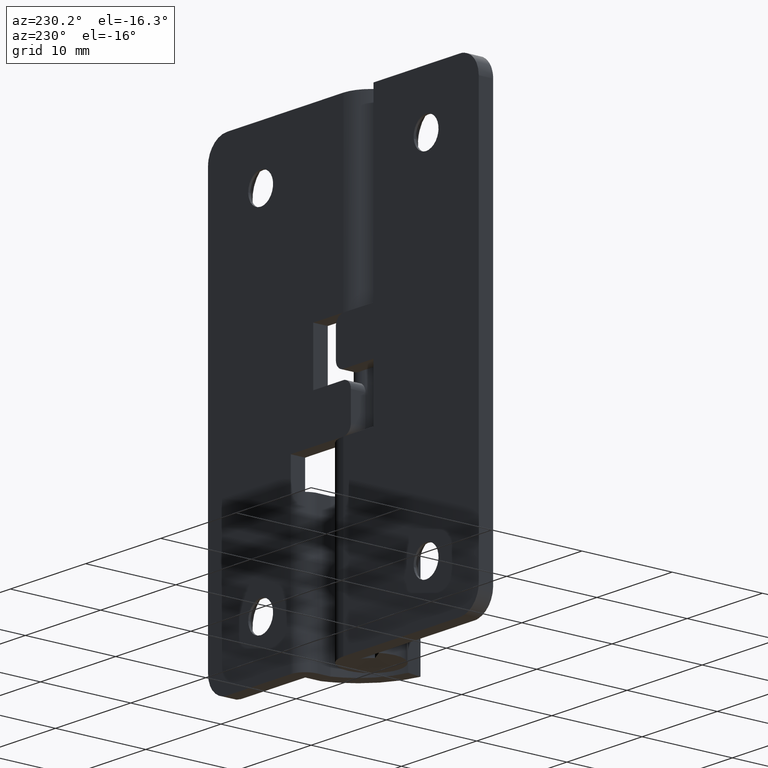
[diagram: clean part render]
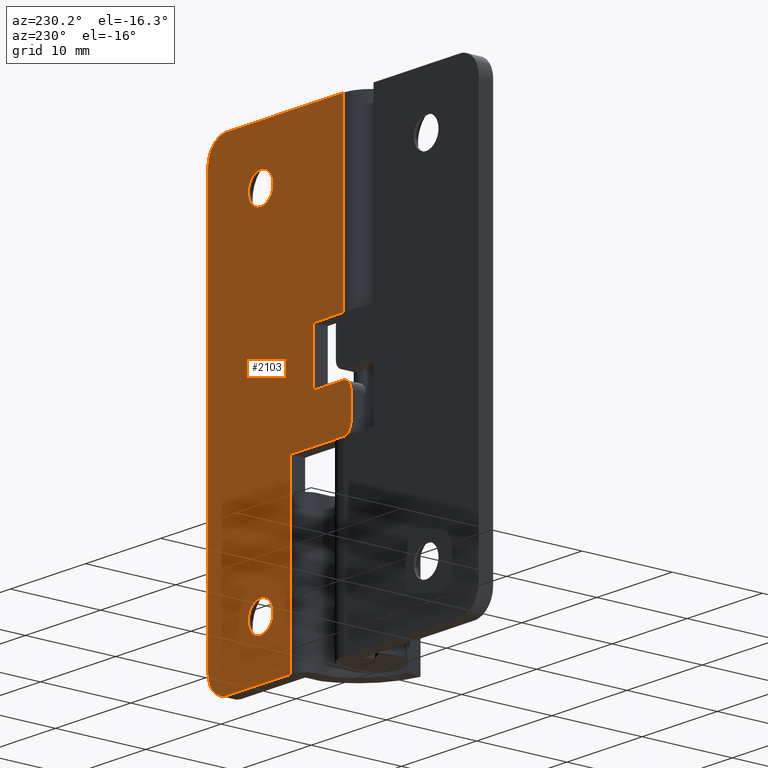
[diagram: same view with one face highlighted and labeled with its STEP entity id]
A machine part, auxiliary view. The second image highlights one B-rep face of the part: STEP entity #2103.
In plain terms, the highlighted face is a freeform B-spline surface patch.
Its self-contained STEP definition (entity closure, byte-faithful):
#672=CARTESIAN_POINT('',(9.362752809069800,3.099990999999999,44.204812196548858));
#673=VERTEX_POINT('',#672);
#679=CARTESIAN_POINT('',(11.0,3.099991000000000,45.650008000000000));
#680=VERTEX_POINT('',#679);
#681=CARTESIAN_POINT('',(11.0,3.099991000000000,45.650008000000000));
#682=CARTESIAN_POINT('',(9.543540248330302,3.099991000000000,45.650008000000007));
#683=CARTESIAN_POINT('',(9.362752809069800,3.099990999999999,44.204812196548865));
#691=(BOUNDED_CURVE()B_SPLINE_CURVE(2,(#681,#682,#683),.UNSPECIFIED.,.F.,.U.)B_SPLINE_CURVE_WITH_KNOTS((3,3),(0.500000000000000,0.728526071010113),.UNSPECIFIED.)CURVE()GEOMETRIC_REPRESENTATION_ITEM()RATIONAL_B_SPLINE_CURVE((1.0,0.732265053916225,0.954005430237487))REPRESENTATION_ITEM(''));
#692=EDGE_CURVE('',#680,#673,#691,.T.);
#694=CARTESIAN_POINT('',(12.649945172749099,3.099991000000000,43.985601146366783));
#695=VERTEX_POINT('',#694);
#696=CARTESIAN_POINT('',(12.649945172749097,3.099991000000000,43.985601146366783));
#697=CARTESIAN_POINT('',(12.650008000000003,3.099991000000000,43.992800435990404));
#698=CARTESIAN_POINT('',(12.650008000000000,3.099991000000000,44.0));
#699=CARTESIAN_POINT('',(12.650007999999998,3.099990999999999,45.650008000000007));
#700=CARTESIAN_POINT('',(11.0,3.099991000000000,45.650008000000000));
#708=(BOUNDED_CURVE()B_SPLINE_CURVE(2,(#696,#697,#698,#699,#700),.UNSPECIFIED.,.F.,.U.)B_SPLINE_CURVE_WITH_KNOTS((3,2,3),(0.248460105611930,0.250000000000000,0.500000000000000),.UNSPECIFIED.)CURVE()GEOMETRIC_REPRESENTATION_ITEM()RATIONAL_B_SPLINE_CURVE((0.996414027977557,0.998195901504181,1.0,0.707106781186548,1.0))REPRESENTATION_ITEM(''));
#709=EDGE_CURVE('',#695,#680,#708,.T.);
#745=CARTESIAN_POINT('',(11.0,3.099991000000000,42.349991999999993));
#746=VERTEX_POINT('',#745);
#747=CARTESIAN_POINT('',(11.0,3.099991000000000,42.349991999999993));
#748=CARTESIAN_POINT('',(12.635671427478446,3.099990999999999,42.349991999999993));
#749=CARTESIAN_POINT('',(12.649945172749094,3.099991000000000,43.985601146366790));
#757=(BOUNDED_CURVE()B_SPLINE_CURVE(2,(#747,#748,#749),.UNSPECIFIED.,.F.,.U.)B_SPLINE_CURVE_WITH_KNOTS((3,3),(0.0,0.248460105611930),.UNSPECIFIED.)CURVE()GEOMETRIC_REPRESENTATION_ITEM()RATIONAL_B_SPLINE_CURVE((1.0,0.708910879682366,0.996414027977556))REPRESENTATION_ITEM(''));
#758=EDGE_CURVE('',#746,#695,#757,.T.);
#760=CARTESIAN_POINT('',(9.362752809069800,3.099991000000000,44.204812196548858));
#761=CARTESIAN_POINT('',(9.349992000000000,3.099991000000001,44.102803628963905));
#762=CARTESIAN_POINT('',(9.349992000000000,3.099991000000000,44.0));
#763=CARTESIAN_POINT('',(9.349992000000000,3.099990999999999,42.349992000000000));
#764=CARTESIAN_POINT('',(11.0,3.099991000000000,42.349991999999993));
#772=(BOUNDED_CURVE()B_SPLINE_CURVE(2,(#760,#761,#762,#763,#764),.UNSPECIFIED.,.F.,.U.)B_SPLINE_CURVE_WITH_KNOTS((3,2,3),(0.728526071010114,0.750000000000000,1.0),.UNSPECIFIED.)CURVE()GEOMETRIC_REPRESENTATION_ITEM()RATIONAL_B_SPLINE_CURVE((0.954005430237489,0.974841727270323,1.0,0.707106781186548,1.0))REPRESENTATION_ITEM(''));
#773=EDGE_CURVE('',#673,#746,#772,.T.);
#1016=CARTESIAN_POINT('',(9.362752809069800,3.099990999999999,6.204812196548861));
#1017=VERTEX_POINT('',#1016);
#1023=CARTESIAN_POINT('',(11.0,3.099991000000000,7.650008000000000));
#1024=VERTEX_POINT('',#1023);
#1025=CARTESIAN_POINT('',(11.0,3.099991000000000,7.650008000000000));
#1026=CARTESIAN_POINT('',(9.543540248330302,3.099991000000000,7.650008000000000));
#1027=CARTESIAN_POINT('',(9.362752809069800,3.099990999999999,6.204812196548861));
#1035=(BOUNDED_CURVE()B_SPLINE_CURVE(2,(#1025,#1026,#1027),.UNSPECIFIED.,.F.,.U.)B_SPLINE_CURVE_WITH_KNOTS((3,3),(0.500000000000000,0.728526071010113),.UNSPECIFIED.)CURVE()GEOMETRIC_REPRESENTATION_ITEM()RATIONAL_B_SPLINE_CURVE((1.0,0.732265053916225,0.954005430237487))REPRESENTATION_ITEM(''));
#1036=EDGE_CURVE('',#1024,#1017,#1035,.T.);
#1038=CARTESIAN_POINT('',(12.649945172749099,3.099991000000000,5.985601146366783));
#1039=VERTEX_POINT('',#1038);
#1040=CARTESIAN_POINT('',(12.649945172749097,3.099991000000000,5.985601146366783));
#1041=CARTESIAN_POINT('',(12.650008000000003,3.099991000000000,5.992800435990405));
#1042=CARTESIAN_POINT('',(12.650008000000000,3.099991000000000,6.0));
#1043=CARTESIAN_POINT('',(12.650007999999998,3.099990999999999,7.650007999999999));
#1044=CARTESIAN_POINT('',(11.0,3.099991000000000,7.650008000000000));
#1052=(BOUNDED_CURVE()B_SPLINE_CURVE(2,(#1040,#1041,#1042,#1043,#1044),.UNSPECIFIED.,.F.,.U.)B_SPLINE_CURVE_WITH_KNOTS((3,2,3),(0.248460105611930,0.250000000000000,0.500000000000000),.UNSPECIFIED.)CURVE()GEOMETRIC_REPRESENTATION_ITEM()RATIONAL_B_SPLINE_CURVE((0.996414027977557,0.998195901504181,1.0,0.707106781186548,1.0))REPRESENTATION_ITEM(''));
#1053=EDGE_CURVE('',#1039,#1024,#1052,.T.);
#1089=CARTESIAN_POINT('',(11.0,3.099991000000000,4.349992000000000));
#1090=VERTEX_POINT('',#1089);
#1091=CARTESIAN_POINT('',(11.0,3.099991000000000,4.349992000000000));
#1092=CARTESIAN_POINT('',(12.635671427478449,3.099991000000000,4.349992000000002));
#1093=CARTESIAN_POINT('',(12.649945172749096,3.099991000000000,5.985601146366783));
#1101=(BOUNDED_CURVE()B_SPLINE_CURVE(2,(#1091,#1092,#1093),.UNSPECIFIED.,.F.,.U.)B_SPLINE_CURVE_WITH_KNOTS((3,3),(0.0,0.248460105611930),.UNSPECIFIED.)CURVE()GEOMETRIC_REPRESENTATION_ITEM()RATIONAL_B_SPLINE_CURVE((1.0,0.708910879682366,0.996414027977557))REPRESENTATION_ITEM(''));
#1102=EDGE_CURVE('',#1090,#1039,#1101,.T.);
#1104=CARTESIAN_POINT('',(9.362752809069800,3.099990999999999,6.204812196548861));
#1105=CARTESIAN_POINT('',(9.349991999999999,3.099991000000000,6.102803628963901));
#1106=CARTESIAN_POINT('',(9.349992000000000,3.099991000000000,6.0));
#1107=CARTESIAN_POINT('',(9.349992000000000,3.099990999999999,4.349992000000000));
#1108=CARTESIAN_POINT('',(11.0,3.099991000000000,4.349992000000000));
#1116=(BOUNDED_CURVE()B_SPLINE_CURVE(2,(#1104,#1105,#1106,#1107,#1108),.UNSPECIFIED.,.F.,.U.)B_SPLINE_CURVE_WITH_KNOTS((3,2,3),(0.728526071010114,0.750000000000000,1.0),.UNSPECIFIED.)CURVE()GEOMETRIC_REPRESENTATION_ITEM()RATIONAL_B_SPLINE_CURVE((0.954005430237488,0.974841727270323,1.0,0.707106781186548,1.0))REPRESENTATION_ITEM(''));
#1117=EDGE_CURVE('',#1017,#1090,#1116,.T.);
#1139=CARTESIAN_POINT('',(7.000000999999790,3.099991000000000,16.0));
#1140=VERTEX_POINT('',#1139);
#1156=CARTESIAN_POINT('',(7.000001999999890,3.099991000000000,0.0));
#1157=VERTEX_POINT('',#1156);
#1158=CARTESIAN_POINT('',(7.000001999999890,3.099991000000000,0.0));
#1159=CARTESIAN_POINT('',(7.000000999999790,3.099991000000000,16.0));
#1160=QUASI_UNIFORM_CURVE('',1,(#1158,#1159),.UNSPECIFIED.,.F.,.U.);
#1161=EDGE_CURVE('',#1157,#1140,#1160,.T.);
#1426=CARTESIAN_POINT('',(-1.0,3.099991000000000,20.500000000000000));
#1427=VERTEX_POINT('',#1426);
#1433=CARTESIAN_POINT('',(0.0,3.099991000000000,19.500000000000000));
#1434=VERTEX_POINT('',#1433);
#1435=CARTESIAN_POINT('',(0.0,3.099991000000000,19.500000000000000));
#1436=CARTESIAN_POINT('',(-1.0,3.099990999999999,19.500000000000004));
#1437=CARTESIAN_POINT('',(-1.0,3.099991000000000,20.500000000000000));
#1445=(BOUNDED_CURVE()B_SPLINE_CURVE(2,(#1435,#1436,#1437),.UNSPECIFIED.,.F.,.U.)CURVE()GEOMETRIC_REPRESENTATION_ITEM()QUASI_UNIFORM_CURVE()RATIONAL_B_SPLINE_CURVE((1.0,0.707106781186548,1.0))REPRESENTATION_ITEM(''));
#1446=EDGE_CURVE('',#1434,#1427,#1445,.T.);
#1487=CARTESIAN_POINT('',(0.0,3.099991000000000,24.500000000000000));
#1488=VERTEX_POINT('',#1487);
#1494=CARTESIAN_POINT('',(-1.0,3.099991000000000,23.500000000000000));
#1495=VERTEX_POINT('',#1494);
#1496=CARTESIAN_POINT('',(-1.0,3.099991000000000,23.500000000000000));
#1497=CARTESIAN_POINT('',(-1.0,3.099990999999999,24.500000000000004));
#1498=CARTESIAN_POINT('',(0.0,3.099991000000000,24.500000000000000));
#1506=(BOUNDED_CURVE()B_SPLINE_CURVE(2,(#1496,#1497,#1498),.UNSPECIFIED.,.F.,.U.)CURVE()GEOMETRIC_REPRESENTATION_ITEM()QUASI_UNIFORM_CURVE()RATIONAL_B_SPLINE_CURVE((1.0,0.707106781186548,1.0))REPRESENTATION_ITEM(''));
#1507=EDGE_CURVE('',#1495,#1488,#1506,.T.);
#1522=CARTESIAN_POINT('',(4.0,3.099991000000000,24.500000000000000));
#1523=VERTEX_POINT('',#1522);
#1524=CARTESIAN_POINT('',(0.0,3.099991000000000,24.500000000000000));
#1525=CARTESIAN_POINT('',(4.0,3.099991000000000,24.500000000000000));
#1526=QUASI_UNIFORM_CURVE('',1,(#1524,#1525),.UNSPECIFIED.,.F.,.U.);
#1527=EDGE_CURVE('',#1488,#1523,#1526,.T.);
#1556=CARTESIAN_POINT('',(-1.0,3.099991000000000,20.500000000000000));
#1557=CARTESIAN_POINT('',(-1.0,3.099991000000000,23.500000000000000));
#1558=QUASI_UNIFORM_CURVE('',1,(#1556,#1557),.UNSPECIFIED.,.F.,.U.);
#1559=EDGE_CURVE('',#1427,#1495,#1558,.T.);
#1570=CARTESIAN_POINT('',(6.999999999999901,3.099991000000000,19.500000000000000));
#1571=VERTEX_POINT('',#1570);
#1572=CARTESIAN_POINT('',(7.000000999999790,3.099991000000000,16.0));
#1573=CARTESIAN_POINT('',(6.999999999999901,3.099991000000000,19.500000000000000));
#1574=QUASI_UNIFORM_CURVE('',1,(#1572,#1573),.UNSPECIFIED.,.F.,.U.);
#1575=EDGE_CURVE('',#1140,#1571,#1574,.T.);
#1600=CARTESIAN_POINT('',(4.0,3.099991000000000,30.500000000000000));
#1601=VERTEX_POINT('',#1600);
#1642=CARTESIAN_POINT('',(0.007462934341625,3.099991000000000,30.500000000000000));
#1643=VERTEX_POINT('',#1642);
#1663=CARTESIAN_POINT('',(4.0,3.099991000000000,30.500000000000000));
#1664=CARTESIAN_POINT('',(0.007462934341625,3.099991000000000,30.500000000000000));
#1665=QUASI_UNIFORM_CURVE('',1,(#1663,#1664),.UNSPECIFIED.,.F.,.U.);
#1666=EDGE_CURVE('',#1601,#1643,#1665,.T.);
#1682=CARTESIAN_POINT('',(6.999999999999901,3.099991000000000,19.500000000000000));
#1683=CARTESIAN_POINT('',(0.0,3.099991000000000,19.500000000000000));
#1684=QUASI_UNIFORM_CURVE('',1,(#1682,#1683),.UNSPECIFIED.,.F.,.U.);
#1685=EDGE_CURVE('',#1571,#1434,#1684,.T.);
#1696=CARTESIAN_POINT('',(4.0,3.099991000000000,24.500000000000000));
#1697=CARTESIAN_POINT('',(4.0,3.099991000000000,30.500000000000000));
#1698=QUASI_UNIFORM_CURVE('',1,(#1696,#1697),.UNSPECIFIED.,.F.,.U.);
#1699=EDGE_CURVE('',#1523,#1601,#1698,.T.);
#1725=CARTESIAN_POINT('',(15.500000000000000,3.099991000000000,50.0));
#1726=VERTEX_POINT('',#1725);
#1727=CARTESIAN_POINT('',(18.0,3.099991000000000,47.500000000000000));
#1728=VERTEX_POINT('',#1727);
#1729=CARTESIAN_POINT('',(15.500000000000000,3.099991000000000,50.0));
#1730=CARTESIAN_POINT('',(18.000000000000007,3.099990999999999,50.0));
#1731=CARTESIAN_POINT('',(18.0,3.099991000000000,47.500000000000000));
#1739=(BOUNDED_CURVE()B_SPLINE_CURVE(2,(#1729,#1730,#1731),.UNSPECIFIED.,.F.,.U.)CURVE()GEOMETRIC_REPRESENTATION_ITEM()QUASI_UNIFORM_CURVE()RATIONAL_B_SPLINE_CURVE((1.0,0.707106781186548,1.0))REPRESENTATION_ITEM(''));
#1740=EDGE_CURVE('',#1726,#1728,#1739,.T.);
#1786=CARTESIAN_POINT('',(18.0,3.099991000000000,2.499999999999945));
#1787=VERTEX_POINT('',#1786);
#1788=CARTESIAN_POINT('',(15.500000000000000,3.099991000000000,0.0));
#1789=VERTEX_POINT('',#1788);
#1790=CARTESIAN_POINT('',(18.0,3.099991000000000,2.499999999999945));
#1791=CARTESIAN_POINT('',(18.000000000000007,3.099990999999999,0.0));
#1792=CARTESIAN_POINT('',(15.500000000000000,3.099991000000000,0.0));
#1800=(BOUNDED_CURVE()B_SPLINE_CURVE(2,(#1790,#1791,#1792),.UNSPECIFIED.,.F.,.U.)CURVE()GEOMETRIC_REPRESENTATION_ITEM()QUASI_UNIFORM_CURVE()RATIONAL_B_SPLINE_CURVE((1.0,0.707106781186548,1.0))REPRESENTATION_ITEM(''));
#1801=EDGE_CURVE('',#1787,#1789,#1800,.T.);
#1846=CARTESIAN_POINT('',(0.007462934341625,3.099991000000000,50.0));
#1847=VERTEX_POINT('',#1846);
#1848=CARTESIAN_POINT('',(0.007462934341625,3.099991000000000,50.0));
#1849=CARTESIAN_POINT('',(15.500000000000000,3.099991000000000,50.0));
#1850=QUASI_UNIFORM_CURVE('',1,(#1848,#1849),.UNSPECIFIED.,.F.,.U.);
#1851=EDGE_CURVE('',#1847,#1726,#1850,.T.);
#1910=CARTESIAN_POINT('',(7.000001999999890,3.099991000000000,0.0));
#1911=CARTESIAN_POINT('',(15.500000000000000,3.099991000000000,0.0));
#1912=QUASI_UNIFORM_CURVE('',1,(#1910,#1911),.UNSPECIFIED.,.F.,.U.);
#1913=EDGE_CURVE('',#1157,#1789,#1912,.T.);
#1957=CARTESIAN_POINT('',(0.007462934341625,3.099991000000000,30.500000000000000));
#1958=CARTESIAN_POINT('',(0.007462934341625,3.099991000000000,50.0));
#1959=QUASI_UNIFORM_CURVE('',1,(#1957,#1958),.UNSPECIFIED.,.F.,.U.);
#1960=EDGE_CURVE('',#1643,#1847,#1959,.T.);
#2060=CARTESIAN_POINT('',(18.0,3.099991000000000,2.499999999999945));
#2061=CARTESIAN_POINT('',(18.0,3.099991000000000,47.500000000000000));
#2062=QUASI_UNIFORM_CURVE('',1,(#2060,#2061),.UNSPECIFIED.,.F.,.U.);
#2063=EDGE_CURVE('',#1787,#1728,#2062,.T.);
#2069=CARTESIAN_POINT('',(-1.949049963174312,3.099991000000000,52.497499903090286));
#2070=CARTESIAN_POINT('',(-1.949049963174312,3.099991000000000,-2.497501244194806));
#2071=CARTESIAN_POINT('',(18.949050472794021,3.099991000000000,52.497499903090301));
#2072=CARTESIAN_POINT('',(18.949050472794021,3.099991000000000,-2.497501244194806));
#2073=B_SPLINE_SURFACE_WITH_KNOTS('',1,1,((#2069,#2071),(#2070,#2072)),.UNSPECIFIED.,.F.,.F.,.U.,(2,2),(2,2),(0.0,54.995001147285109),(0.0,20.898100435968342),.UNSPECIFIED.);
#2074=ORIENTED_EDGE('',*,*,#1913,.F.);
#2075=ORIENTED_EDGE('',*,*,#1161,.T.);
#2076=ORIENTED_EDGE('',*,*,#1575,.T.);
#2077=ORIENTED_EDGE('',*,*,#1685,.T.);
#2078=ORIENTED_EDGE('',*,*,#1446,.T.);
#2079=ORIENTED_EDGE('',*,*,#1559,.T.);
#2080=ORIENTED_EDGE('',*,*,#1507,.T.);
#2081=ORIENTED_EDGE('',*,*,#1527,.T.);
#2082=ORIENTED_EDGE('',*,*,#1699,.T.);
#2083=ORIENTED_EDGE('',*,*,#1666,.T.);
#2084=ORIENTED_EDGE('',*,*,#1960,.T.);
#2085=ORIENTED_EDGE('',*,*,#1851,.T.);
#2086=ORIENTED_EDGE('',*,*,#1740,.T.);
#2087=ORIENTED_EDGE('',*,*,#2063,.F.);
#2088=ORIENTED_EDGE('',*,*,#1801,.T.);
#2089=EDGE_LOOP('',(#2074,#2075,#2076,#2077,#2078,#2079,#2080,#2081,#2082,#2083,#2084,#2085,#2086,#2087,#2088));
#2090=FACE_OUTER_BOUND('',#2089,.T.);
#2091=ORIENTED_EDGE('',*,*,#1102,.T.);
#2092=ORIENTED_EDGE('',*,*,#1053,.T.);
#2093=ORIENTED_EDGE('',*,*,#1036,.T.);
#2094=ORIENTED_EDGE('',*,*,#1117,.T.);
#2095=EDGE_LOOP('',(#2091,#2092,#2093,#2094));
#2096=FACE_BOUND('',#2095,.T.);
#2097=ORIENTED_EDGE('',*,*,#758,.T.);
#2098=ORIENTED_EDGE('',*,*,#709,.T.);
#2099=ORIENTED_EDGE('',*,*,#692,.T.);
#2100=ORIENTED_EDGE('',*,*,#773,.T.);
#2101=EDGE_LOOP('',(#2097,#2098,#2099,#2100));
#2102=FACE_BOUND('',#2101,.T.);
#2103=ADVANCED_FACE('',(#2090,#2096,#2102),#2073,.F.);